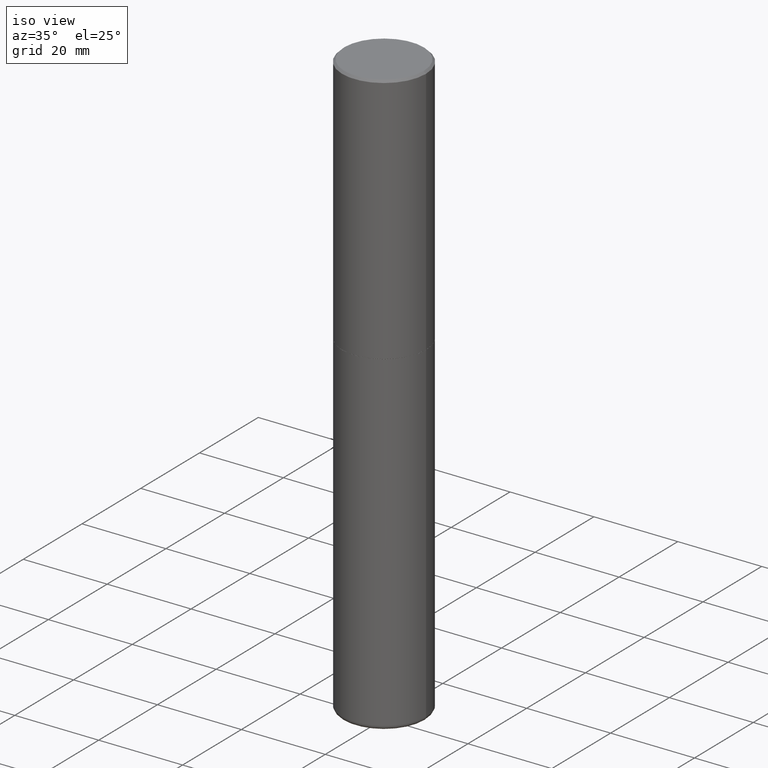
[diagram: clean part render]
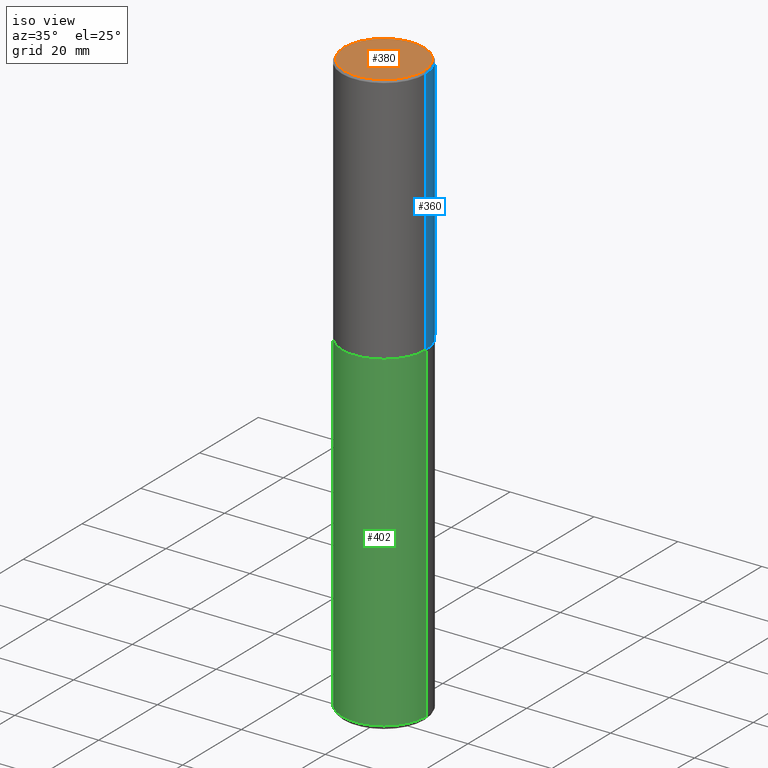
[diagram: same view with three faces highlighted in distinct colors, each labeled with its STEP entity id]
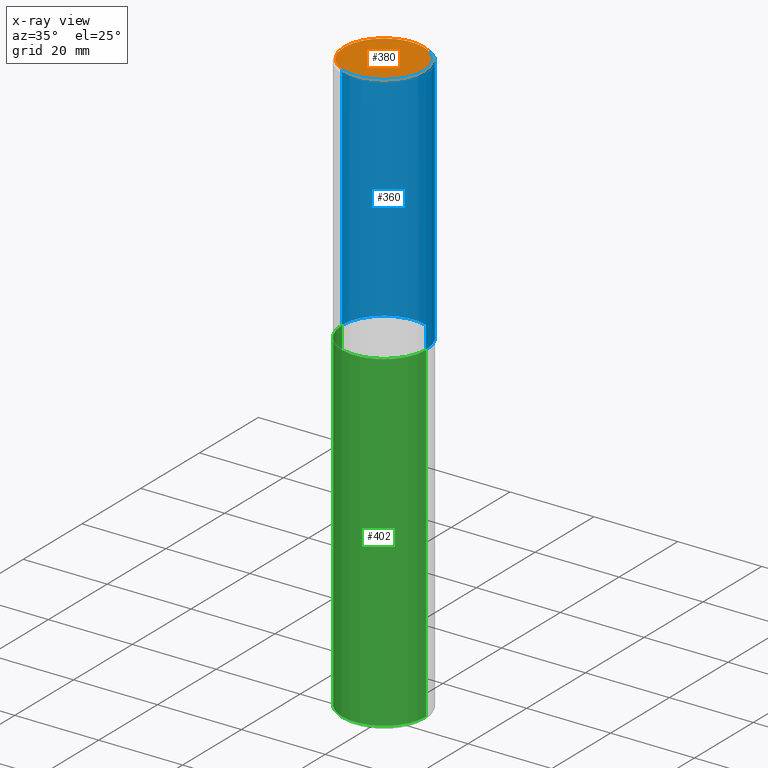
[diagram: x-ray of the same camera — body ghosted, the three highlighted faces saturated]
A machine part, iso view with three faces highlighted in distinct colors.
The next image is the same camera in x-ray (body ghosted, the three faces saturated) — at least one of them is partly hidden behind the body in this view.
Their STEP definitions:

[orange] entity #380 — the highlighted planar face has unit normal (0, -0, -1).
#4 = CIRCLE ( 'NONE', #85, 0.3737000000000003097 ) ;
#14 = DIRECTION ( 'NONE',  ( 2.438088387897960049E-29, -3.491481338843145188E-15, -1.000000000000000000 ) ) ;
#17 = DIRECTION ( 'NONE',  ( 1.000000000000000000, -6.982962677686266711E-15, 4.877734241229871763E-29 ) ) ;
#49 = CARTESIAN_POINT ( 'NONE',  ( -0.3737000000000003097, 2.644447966039789847E-15, -2.219626494852397645E-16 ) ) ;
#85 = AXIS2_PLACEMENT_3D ( 'NONE', #310, #400, #119 ) ;
#95 = EDGE_LOOP ( 'NONE', ( #288, #405 ) ) ;
#119 = DIRECTION ( 'NONE',  ( 1.000000000000000000, -6.982962677686266711E-15, 4.877734241229871763E-29 ) ) ;
#121 = VERTEX_POINT ( 'NONE', #171 ) ;
#155 = VERTEX_POINT ( 'NONE', #49 ) ;
#159 = DIRECTION ( 'NONE',  ( -1.000000000000000000, 6.982962677686265922E-15, -4.876176775795935793E-29 ) ) ;
#164 = AXIS2_PLACEMENT_3D ( 'NONE', #282, #308, #17 ) ;
#166 = EDGE_CURVE ( 'NONE', #155, #121, #214, .T. ) ;
#167 = EDGE_CURVE ( 'NONE', #121, #155, #4, .T. ) ;
#171 = CARTESIAN_POINT ( 'NONE',  ( 0.3737000000000003097, -2.667287895133369937E-15, -2.219626494852029345E-16 ) ) ;
#199 = FACE_OUTER_BOUND ( 'NONE', #95, .T. ) ;
#203 = CARTESIAN_POINT ( 'NONE',  ( 2.609533152651359776E-15, 0.3737000000000003097, -1.415747901068295320E-15 ) ) ;
#214 = CIRCLE ( 'NONE', #164, 0.3737000000000003097 ) ;
#282 = CARTESIAN_POINT ( 'NONE',  ( 5.428027354543142984E-45, -7.749784485978325769E-31, -2.219626494852213988E-16 ) ) ;
#288 = ORIENTED_EDGE ( 'NONE', *, *, #166, .T. ) ;
#308 = DIRECTION ( 'NONE',  ( -2.445468806185136597E-29, 3.491481338843145583E-15, 1.000000000000000000 ) ) ;
#310 = CARTESIAN_POINT ( 'NONE',  ( 5.428027354543142984E-45, -7.749784485978325769E-31, -2.219626494852213988E-16 ) ) ;
#351 = PLANE ( 'NONE',  #352 ) ;
#352 = AXIS2_PLACEMENT_3D ( 'NONE', #203, #14, #159 ) ;
#380 = ADVANCED_FACE ( 'NONE', ( #199 ), #351, .F. ) ;
#400 = DIRECTION ( 'NONE',  ( -2.445468806185136597E-29, 3.491481338843145583E-15, 1.000000000000000000 ) ) ;
#405 = ORIENTED_EDGE ( 'NONE', *, *, #167, .T. ) ;

[blue] entity #360 — the highlighted cylindrical surface (partial cylindrical patch) has radius 10 mm, axis along (-0, 0, 1).
#5 = VECTOR ( 'NONE', #183, 39.37007874015748143 ) ;
#12 = CARTESIAN_POINT ( 'NONE',  ( 0.000000000000000000, 0.000000000000000000, 0.000000000000000000 ) ) ;
#19 = AXIS2_PLACEMENT_3D ( 'NONE', #339, #154, #362 ) ;
#22 = VERTEX_POINT ( 'NONE', #291 ) ;
#34 = CARTESIAN_POINT ( 'NONE',  ( 0.3937000000000000499, -2.770807688499515734E-15, -0.02000000000000008715 ) ) ;
#35 = DIRECTION ( 'NONE',  ( -2.445468806185136877E-29, 3.491481338843145188E-15, 1.000000000000000000 ) ) ;
#46 = CARTESIAN_POINT ( 'NONE',  ( -0.3937000000000001609, 2.797406750687515575E-15, -1.936584745033357296E-29 ) ) ;
#52 = CARTESIAN_POINT ( 'NONE',  ( 4.890937612370294178E-31, -6.982962677686321191E-17, -0.02000000000000008715 ) ) ;
#56 = EDGE_LOOP ( 'NONE', ( #66, #409, #232, #83 ) ) ;
#59 = DIRECTION ( 'NONE',  ( -2.445468806185136597E-29, 3.491481338843145583E-15, 1.000000000000000000 ) ) ;
#66 = ORIENTED_EDGE ( 'NONE', *, *, #156, .T. ) ;
#83 = ORIENTED_EDGE ( 'NONE', *, *, #340, .F. ) ;
#91 = VERTEX_POINT ( 'NONE', #34 ) ;
#103 = VERTEX_POINT ( 'NONE', #325 ) ;
#154 = DIRECTION ( 'NONE',  ( -2.445468806185136597E-29, 3.491481338843145583E-15, 1.000000000000000000 ) ) ;
#156 = EDGE_CURVE ( 'NONE', #22, #103, #172, .T. ) ;
#172 = CIRCLE ( 'NONE', #19, 0.3937000000000002720 ) ;
#173 = DIRECTION ( 'NONE',  ( 1.000000000000000000, -6.982962677686266711E-15, 4.876176775795935793E-29 ) ) ;
#183 = DIRECTION ( 'NONE',  ( -2.445468806185136877E-29, 3.491481338843145188E-15, 1.000000000000000000 ) ) ;
#201 = VECTOR ( 'NONE', #35, 39.37007874015748143 ) ;
#220 = LINE ( 'NONE', #46, #5 ) ;
#228 = DIRECTION ( 'NONE',  ( 1.000000000000000000, -6.982962677686265922E-15, 0.000000000000000000 ) ) ;
#232 = ORIENTED_EDGE ( 'NONE', *, *, #407, .F. ) ;
#268 = CIRCLE ( 'NONE', #412, 0.3937000000000000499 ) ;
#271 = FACE_OUTER_BOUND ( 'NONE', #56, .T. ) ;
#291 = CARTESIAN_POINT ( 'NONE',  ( 0.3937000000000002720, -1.099327814348151984E-14, -2.361199999999999743 ) ) ;
#300 = LINE ( 'NONE', #354, #201 ) ;
#315 = EDGE_CURVE ( 'NONE', #103, #326, #220, .T. ) ;
#325 = CARTESIAN_POINT ( 'NONE',  ( -0.3937000000000003830, -1.359550931339130834E-15, -2.361199999999999743 ) ) ;
#326 = VERTEX_POINT ( 'NONE', #396 ) ;
#339 = CARTESIAN_POINT ( 'NONE',  ( 5.774240945164344150E-29, -8.244085737276435042E-15, -2.361199999999999743 ) ) ;
#340 = EDGE_CURVE ( 'NONE', #22, #91, #300, .T. ) ;
#354 = CARTESIAN_POINT ( 'NONE',  ( 0.3937000000000001609, -2.749192406205084400E-15, 1.919750796630860732E-29 ) ) ;
#360 = ADVANCED_FACE ( 'NONE', ( #271 ), #417, .T. ) ;
#362 = DIRECTION ( 'NONE',  ( 1.000000000000000000, -6.982962677686265922E-15, 0.000000000000000000 ) ) ;
#396 = CARTESIAN_POINT ( 'NONE',  ( -0.3937000000000000499, 2.679362779428219918E-15, -0.02000000000000008715 ) ) ;
#403 = DIRECTION ( 'NONE',  ( -2.445468806185136597E-29, 3.491481338843145583E-15, 1.000000000000000000 ) ) ;
#404 = AXIS2_PLACEMENT_3D ( 'NONE', #12, #59, #173 ) ;
#407 = EDGE_CURVE ( 'NONE', #91, #326, #268, .T. ) ;
#409 = ORIENTED_EDGE ( 'NONE', *, *, #315, .T. ) ;
#412 = AXIS2_PLACEMENT_3D ( 'NONE', #52, #403, #228 ) ;
#417 = CYLINDRICAL_SURFACE ( 'NONE', #404, 0.3937000000000001609 ) ;

[green] entity #402 — the highlighted cylindrical surface (partial cylindrical patch) has radius 10 mm, axis along (-0, 0, 1).
#28 = DIRECTION ( 'NONE',  ( -2.445468806185136877E-29, 3.491481338843145188E-15, 1.000000000000000000 ) ) ;
#65 = ORIENTED_EDGE ( 'NONE', *, *, #337, .T. ) ;
#74 = EDGE_CURVE ( 'NONE', #145, #142, #98, .T. ) ;
#92 = VECTOR ( 'NONE', #394, 39.37007874015748143 ) ;
#93 = VERTEX_POINT ( 'NONE', #174 ) ;
#98 = CIRCLE ( 'NONE', #163, 0.3937000000000000499 ) ;
#100 = EDGE_CURVE ( 'NONE', #205, #93, #323, .T. ) ;
#104 = CARTESIAN_POINT ( 'NONE',  ( 1.338258349496754075E-28, -1.910678247868523272E-14, -5.472400000000000375 ) ) ;
#139 = CARTESIAN_POINT ( 'NONE',  ( 0.3937000000000000499, -1.099676962482036284E-14, -2.362200000000000077 ) ) ;
#142 = VERTEX_POINT ( 'NONE', #139 ) ;
#143 = CARTESIAN_POINT ( 'NONE',  ( -0.3937000000000000499, -1.087977309796274139E-14, -2.362200000000000077 ) ) ;
#145 = VERTEX_POINT ( 'NONE', #143 ) ;
#150 = CARTESIAN_POINT ( 'NONE',  ( -0.3937000000000002164, -1.630937572799771557E-14, -5.472400000000000375 ) ) ;
#153 = LINE ( 'NONE', #281, #207 ) ;
#158 = DIRECTION ( 'NONE',  ( -2.445468806185136597E-29, 3.491481338843145583E-15, 1.000000000000000000 ) ) ;
#163 = AXIS2_PLACEMENT_3D ( 'NONE', #378, #197, #235 ) ;
#174 = CARTESIAN_POINT ( 'NONE',  ( 0.3937000000000002164, -2.185597488489031909E-14, -5.472400000000000375 ) ) ;
#197 = DIRECTION ( 'NONE',  ( -2.445468806185136597E-29, 3.491481338843145583E-15, 1.000000000000000000 ) ) ;
#198 = ORIENTED_EDGE ( 'NONE', *, *, #275, .F. ) ;
#205 = VERTEX_POINT ( 'NONE', #150 ) ;
#207 = VECTOR ( 'NONE', #28, 39.37007874015748143 ) ;
#222 = CYLINDRICAL_SURFACE ( 'NONE', #262, 0.3937000000000000499 ) ;
#230 = EDGE_LOOP ( 'NONE', ( #198, #356, #65, #267 ) ) ;
#235 = DIRECTION ( 'NONE',  ( 1.000000000000000000, -6.982962677686267499E-15, 0.000000000000000000 ) ) ;
#251 = CARTESIAN_POINT ( 'NONE',  ( 0.000000000000000000, 0.000000000000000000, 0.000000000000000000 ) ) ;
#262 = AXIS2_PLACEMENT_3D ( 'NONE', #251, #158, #344 ) ;
#267 = ORIENTED_EDGE ( 'NONE', *, *, #74, .F. ) ;
#275 = EDGE_CURVE ( 'NONE', #205, #145, #279, .T. ) ;
#279 = LINE ( 'NONE', #369, #92 ) ;
#281 = CARTESIAN_POINT ( 'NONE',  ( 0.3937000000000000499, -2.749192406205083217E-15, 1.919750796630860172E-29 ) ) ;
#309 = FACE_OUTER_BOUND ( 'NONE', #230, .T. ) ;
#323 = CIRCLE ( 'NONE', #375, 0.3937000000000000499 ) ;
#328 = DIRECTION ( 'NONE',  ( -2.445468806185136597E-29, 3.491481338843145583E-15, 1.000000000000000000 ) ) ;
#337 = EDGE_CURVE ( 'NONE', #93, #142, #153, .T. ) ;
#344 = DIRECTION ( 'NONE',  ( 1.000000000000000000, -6.982962677686265922E-15, 4.876176775795935793E-29 ) ) ;
#356 = ORIENTED_EDGE ( 'NONE', *, *, #100, .T. ) ;
#359 = DIRECTION ( 'NONE',  ( 1.000000000000000000, -6.982962677686267499E-15, 0.000000000000000000 ) ) ;
#369 = CARTESIAN_POINT ( 'NONE',  ( -0.3937000000000000499, 2.797406750687514786E-15, -1.936584745033356735E-29 ) ) ;
#375 = AXIS2_PLACEMENT_3D ( 'NONE', #104, #328, #359 ) ;
#378 = CARTESIAN_POINT ( 'NONE',  ( 5.776686413970529753E-29, -8.247577218615279626E-15, -2.362200000000000077 ) ) ;
#394 = DIRECTION ( 'NONE',  ( -2.445468806185136877E-29, 3.491481338843145188E-15, 1.000000000000000000 ) ) ;
#402 = ADVANCED_FACE ( 'NONE', ( #309 ), #222, .T. ) ;